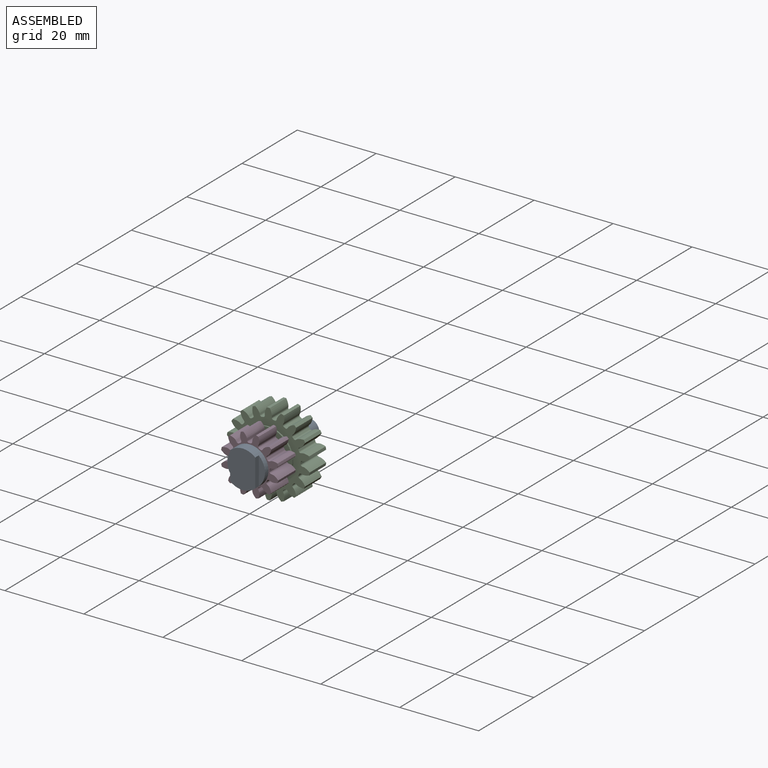
[diagram: assembled view]
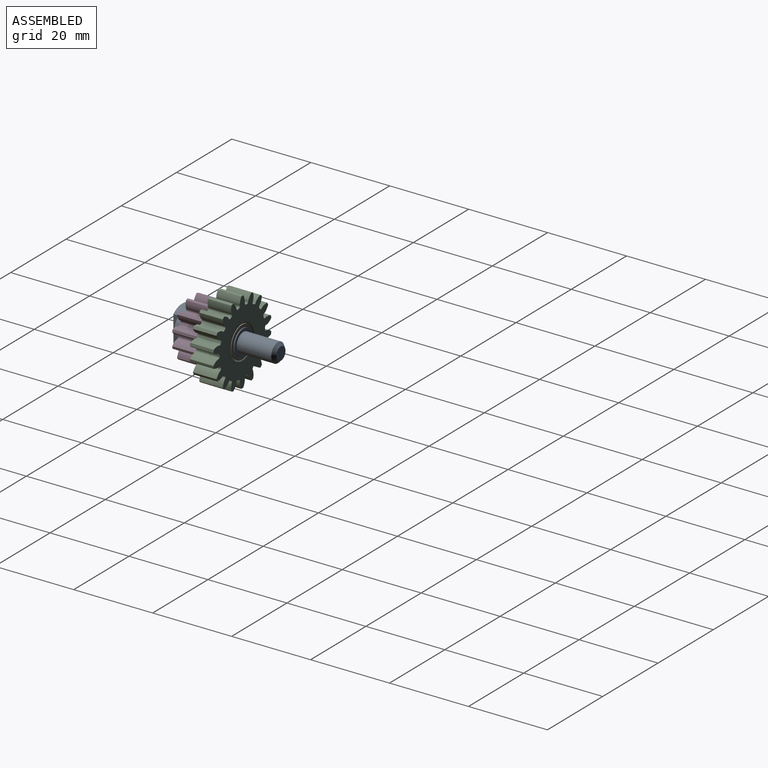
[diagram: assembled view, second angle]
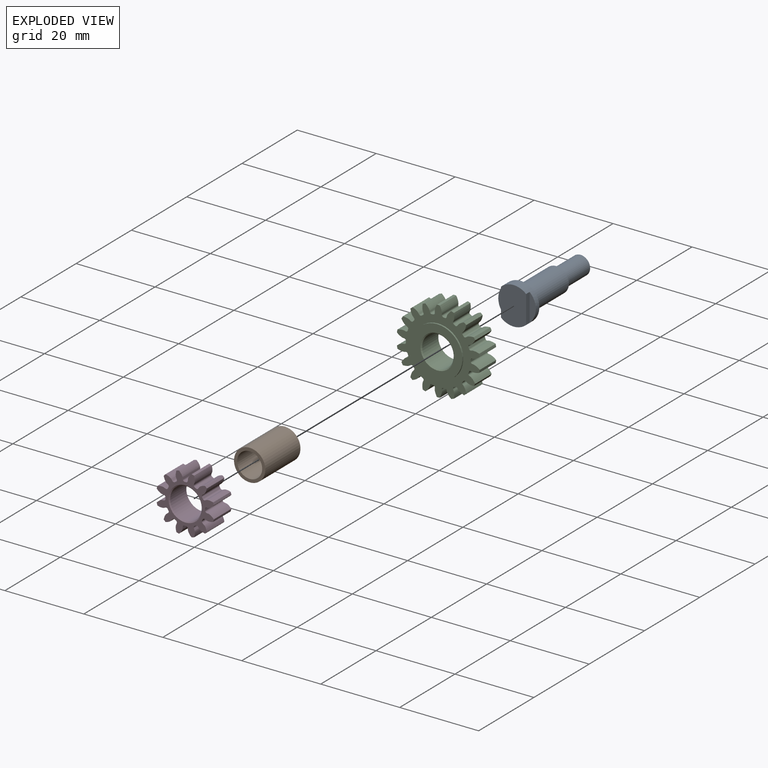
[diagram: exploded view]
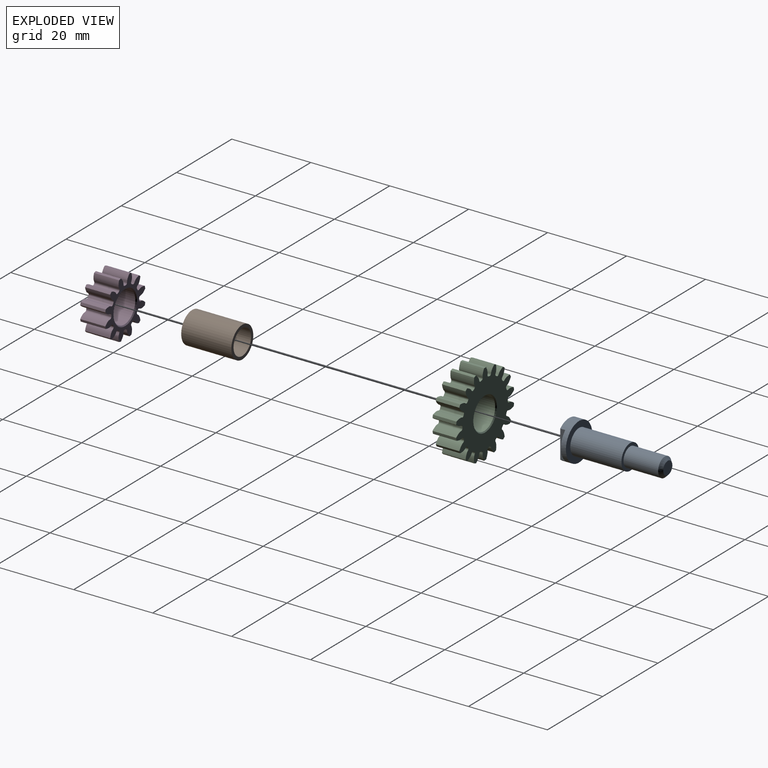
[diagram: exploded view, second angle]
ASSEMBLY  parts=4 mates=3
PART A: 12 faces, bbox 9.5x25x9.5 mm
  f0: plane 9.53x6.35mm, normal (0,-1,0), area 55.6mm2, adj f6,f7,f9
  f1: plane 3.3x3.3mm, normal (0,1,0), area 8.6mm2, adj f11
  f2: cylinder r=2.41mm len=8.76mm, axis (0,-1,0), area 132.9mm2, adj f3,f11
  f3: plane 6.35x6.35mm, normal (0,1,0), area 13.4mm2, adj f2,f4
  f4: cylinder r=3.17mm len=12.95mm, axis (0,-1,0), area 258.4mm2, adj f3,f5
  f5: plane 9.53x9.53mm, normal (0,1,0), area 39.6mm2, adj f4,f6
  f6: cylinder r=4.76mm len=9.53mm, axis (0,-1,0), area 55.7mm2, adj f0,f5,f7,f8,f9,f10
  f7: plane 7.1x1.27mm, normal (-1,0,0), area 9mm2, adj f0,f6,f8
  f8: plane 7.1x1.59mm, normal (0,-1,0), area 7.8mm2, adj f6,f7
  f9: plane 7.1x1.27mm, normal (1,0,0), area 9mm2, adj f0,f6,f10
  f10: plane 7.1x1.59mm, normal (0,-1,0), area 7.8mm2, adj f6,f9
  f11: cone r=2.41mm half-angle=45deg, axis (0,-1,0), area 13.8mm2, adj f1,f2
PART B: 4 faces, bbox 7.9x12.7x7.9 mm
  f0: cylinder r=3.17mm len=12.7mm, axis (0,1,0), area 253.4mm2, adj f2,f3
  f1: cylinder r=3.97mm len=12.7mm, axis (0,1,0), area 316.7mm2, adj f2,f3
  f2: plane 7.94x7.94mm, normal (0,-1,0), area 17.8mm2, adj f0,f1
  f3: plane 7.94x7.94mm, normal (0,1,0), area 17.8mm2, adj f0,f1
PART C: 115 faces, bbox 21x6.4x21.2 mm
  f0: cylinder r=10.58mm len=5.97mm, axis (0,1,0), area 4.3mm2, adj f99,f106,f110,f111
  f1: cylinder r=10.58mm len=5.97mm, axis (0,1,0), area 4.3mm2, adj f89,f101,f110,f111
  f2: cylinder r=10.58mm len=5.97mm, axis (0,1,0), area 4.3mm2, adj f19,f96,f110,f111
  f3: cylinder r=10.58mm len=5.97mm, axis (0,1,0), area 4.3mm2, adj f91,f94,f110,f111
  f4: cylinder r=10.58mm len=5.97mm, axis (0,1,0), area 4.3mm2, adj f74,f86,f110,f111
  f5: cylinder r=10.58mm len=5.97mm, axis (0,1,0), area 4.3mm2, adj f81,f84,f110,f111
  f6: cylinder r=10.58mm len=5.97mm, axis (0,1,0), area 4.3mm2, adj f69,f76,f110,f111
  f7: cylinder r=10.58mm len=5.97mm, axis (0,1,0), area 4.3mm2, adj f71,f104,f110,f111
  f8: cylinder r=10.58mm len=5.97mm, axis (0,1,0), area 4.3mm2, adj f54,f66,f110,f111
  f9: cylinder r=10.58mm len=5.97mm, axis (0,1,0), area 4.3mm2, adj f61,f64,f110,f111
  f10: cylinder r=10.58mm len=5.97mm, axis (0,1,0), area 4.3mm2, adj f49,f56,f110,f111
  f11: cylinder r=10.58mm len=5.97mm, axis (0,1,0), area 4.3mm2, adj f51,f79,f110,f111
  f12: cylinder r=10.58mm len=5.97mm, axis (0,1,0), area 4.3mm2, adj f46,f59,f110,f111
  f13: cylinder r=10.58mm len=5.97mm, axis (0,1,0), area 4.3mm2, adj f41,f44,f110,f111
  f14: cylinder r=10.58mm len=5.97mm, axis (0,1,0), area 4.3mm2, adj f29,f36,f110,f111
  f15: cylinder r=10.58mm len=5.97mm, axis (0,1,0), area 4.3mm2, adj f31,f39,f110,f111
  f16: cylinder r=10.58mm len=5.97mm, axis (0,1,0), area 4.3mm2, adj f26,f34,f110,f111
  f17: plane 12.7x12.7mm, normal (0,-1,0), area 69.8mm2, adj f112,f113
  f18: cylinder r=10.58mm len=5.97mm, axis (0,1,0), area 4.3mm2, adj f21,f24,f110,f111
  f19: extruded ~5.97x1.88mm, area 12.7mm2, adj f2,f22,f110,f111
  f20: cylinder r=8.2mm len=5.97mm, axis (0,1,0), area 2.2mm2, adj f22,f23,f110,f111
  f21: extruded ~5.97x1.88mm, area 12.7mm2, adj f18,f23,f110,f111
  f22: cylinder r=0.43mm len=5.97mm, axis (0,1,0), area 3.9mm2, adj f19,f20,f110,f111
  f23: cylinder r=0.43mm len=5.97mm, axis (0,1,0), area 3.9mm2, adj f20,f21,f110,f111
  f24: extruded ~5.97x2.06mm, area 12.7mm2, adj f18,f27,f110,f111
  f25: cylinder r=8.2mm len=5.97mm, axis (0,1,0), area 2.2mm2, adj f27,f28,f110,f111
  f26: extruded ~5.97x1.48mm, area 12.7mm2, adj f16,f28,f110,f111
  f27: cylinder r=0.43mm len=5.97mm, axis (0,1,0), area 3.9mm2, adj f24,f25,f110,f111
  f28: cylinder r=0.43mm len=5.97mm, axis (0,1,0), area 3.9mm2, adj f25,f26,f110,f111
  f29: extruded ~5.97x1.69mm, area 12.7mm2, adj f14,f32,f110,f111
  f30: cylinder r=8.2mm len=5.97mm, axis (0,1,0), area 2.2mm2, adj f32,f33,f110,f111
  f31: extruded ~5.97x2.06mm, area 12.7mm2, adj f15,f33,f110,f111
  f32: cylinder r=0.43mm len=5.97mm, axis (0,1,0), area 3.9mm2, adj f29,f30,f110,f111
  f33: cylinder r=0.43mm len=5.97mm, axis (0,1,0), area 3.9mm2, adj f30,f31,f110,f111
  f34: extruded ~5.97x2mm, area 12.7mm2, adj f16,f37,f110,f111
  f35: cylinder r=8.2mm len=5.97mm, axis (0,1,0), area 2.2mm2, adj f37,f38,f110,f111
  f36: extruded ~5.97x1.87mm, area 12.7mm2, adj f14,f38,f110,f111
  f37: cylinder r=0.43mm len=5.97mm, axis (0,1,0), area 3.9mm2, adj f34,f35,f110,f111
  f38: cylinder r=0.43mm len=5.97mm, axis (0,1,0), area 3.9mm2, adj f35,f36,f110,f111
  f39: extruded ~5.97x1.71mm, area 12.7mm2, adj f15,f42,f110,f111
  f40: cylinder r=8.2mm len=5.97mm, axis (0,1,0), area 2.2mm2, adj f42,f43,f110,f111
  f41: extruded ~5.97x2mm, area 12.7mm2, adj f13,f43,f110,f111
  f42: cylinder r=0.43mm len=5.97mm, axis (0,1,0), area 3.9mm2, adj f39,f40,f110,f111
  f43: cylinder r=0.43mm len=5.97mm, axis (0,1,0), area 3.9mm2, adj f40,f41,f110,f111
  f44: extruded ~5.97x2mm, area 12.7mm2, adj f13,f47,f110,f111
  f45: cylinder r=8.2mm len=5.97mm, axis (0,1,0), area 2.2mm2, adj f47,f48,f110,f111
  f46: extruded ~5.97x1.71mm, area 12.7mm2, adj f12,f48,f110,f111
  f47: cylinder r=0.43mm len=5.97mm, axis (0,1,0), area 3.9mm2, adj f44,f45,f110,f111
  f48: cylinder r=0.43mm len=5.97mm, axis (0,1,0), area 3.9mm2, adj f45,f46,f110,f111
  f49: extruded ~5.97x1.88mm, area 12.7mm2, adj f10,f52,f110,f111
  f50: cylinder r=8.2mm len=5.97mm, axis (0,1,0), area 2.2mm2, adj f52,f53,f110,f111
  f51: extruded ~5.97x1.88mm, area 12.7mm2, adj f11,f53,f110,f111
  f52: cylinder r=0.43mm len=5.97mm, axis (0,1,0), area 3.9mm2, adj f49,f50,f110,f111
  f53: cylinder r=0.43mm len=5.97mm, axis (0,1,0), area 3.9mm2, adj f50,f51,f110,f111
  f54: extruded ~5.97x1.48mm, area 12.7mm2, adj f8,f57,f110,f111
  f55: cylinder r=8.2mm len=5.97mm, axis (0,1,0), area 2.2mm2, adj f57,f58,f110,f111
  f56: extruded ~5.97x2.06mm, area 12.7mm2, adj f10,f58,f110,f111
  f57: cylinder r=0.43mm len=5.97mm, axis (0,1,0), area 3.9mm2, adj f54,f55,f110,f111
  f58: cylinder r=0.43mm len=5.97mm, axis (0,1,0), area 3.9mm2, adj f55,f56,f110,f111
  f59: extruded ~5.97x2.06mm, area 12.7mm2, adj f12,f62,f110,f111
  f60: cylinder r=8.2mm len=5.97mm, axis (0,1,0), area 2.2mm2, adj f62,f63,f110,f111
  f61: extruded ~5.97x1.69mm, area 12.7mm2, adj f9,f63,f110,f111
  f62: cylinder r=0.43mm len=5.97mm, axis (0,1,0), area 3.9mm2, adj f59,f60,f110,f111
  f63: cylinder r=0.43mm len=5.97mm, axis (0,1,0), area 3.9mm2, adj f60,f61,f110,f111
  f64: extruded ~5.97x1.87mm, area 12.7mm2, adj f9,f67,f110,f111
  f65: cylinder r=8.2mm len=5.97mm, axis (0,1,0), area 2.2mm2, adj f67,f68,f110,f111
  f66: extruded ~5.97x2mm, area 12.7mm2, adj f8,f68,f110,f111
  f67: cylinder r=0.43mm len=5.97mm, axis (0,1,0), area 3.9mm2, adj f64,f65,f110,f111
  f68: cylinder r=0.43mm len=5.97mm, axis (0,1,0), area 3.9mm2, adj f65,f66,f110,f111
  f69: extruded ~5.97x1.71mm, area 12.7mm2, adj f6,f72,f110,f111
  f70: cylinder r=8.2mm len=5.97mm, axis (0,1,0), area 2.2mm2, adj f72,f73,f110,f111
  f71: extruded ~5.97x2mm, area 12.7mm2, adj f7,f73,f110,f111
  f72: cylinder r=0.43mm len=5.97mm, axis (0,1,0), area 3.9mm2, adj f69,f70,f110,f111
  f73: cylinder r=0.43mm len=5.97mm, axis (0,1,0), area 3.9mm2, adj f70,f71,f110,f111
  f74: extruded ~5.97x1.69mm, area 12.7mm2, adj f4,f77,f110,f111
  f75: cylinder r=8.2mm len=5.97mm, axis (0,1,0), area 2.2mm2, adj f77,f78,f110,f111
  f76: extruded ~5.97x2.06mm, area 12.7mm2, adj f6,f78,f110,f111
  f77: cylinder r=0.43mm len=5.97mm, axis (0,1,0), area 3.9mm2, adj f74,f75,f110,f111
  f78: cylinder r=0.43mm len=5.97mm, axis (0,1,0), area 3.9mm2, adj f75,f76,f110,f111
  f79: extruded ~5.97x2.06mm, area 12.7mm2, adj f11,f82,f110,f111
  f80: cylinder r=8.2mm len=5.97mm, axis (0,1,0), area 2.2mm2, adj f82,f83,f110,f111
  f81: extruded ~5.97x1.48mm, area 12.7mm2, adj f5,f83,f110,f111
  f82: cylinder r=0.43mm len=5.97mm, axis (0,1,0), area 3.9mm2, adj f79,f80,f110,f111
  f83: cylinder r=0.43mm len=5.97mm, axis (0,1,0), area 3.9mm2, adj f80,f81,f110,f111
  f84: extruded ~5.97x2mm, area 12.7mm2, adj f5,f87,f110,f111
  f85: cylinder r=8.2mm len=5.97mm, axis (0,1,0), area 2.2mm2, adj f87,f88,f110,f111
  f86: extruded ~5.97x1.87mm, area 12.7mm2, adj f4,f88,f110,f111
  f87: cylinder r=0.43mm len=5.97mm, axis (0,1,0), area 3.9mm2, adj f84,f85,f110,f111
  f88: cylinder r=0.43mm len=5.97mm, axis (0,1,0), area 3.9mm2, adj f85,f86,f110,f111
  f89: extruded ~5.97x1.87mm, area 12.7mm2, adj f1,f92,f110,f111
  f90: cylinder r=8.2mm len=5.97mm, axis (0,1,0), area 2.2mm2, adj f92,f93,f110,f111
  f91: extruded ~5.97x2mm, area 12.7mm2, adj f3,f93,f110,f111
  f92: cylinder r=0.43mm len=5.97mm, axis (0,1,0), area 3.9mm2, adj f89,f90,f110,f111
  f93: cylinder r=0.43mm len=5.97mm, axis (0,1,0), area 3.9mm2, adj f90,f91,f110,f111
  f94: extruded ~5.97x1.48mm, area 12.7mm2, adj f3,f97,f110,f111
  f95: cylinder r=8.2mm len=5.97mm, axis (0,1,0), area 2.2mm2, adj f97,f98,f110,f111
  f96: extruded ~5.97x2.06mm, area 12.7mm2, adj f2,f98,f110,f111
  f97: cylinder r=0.43mm len=5.97mm, axis (0,1,0), area 3.9mm2, adj f94,f95,f110,f111
  f98: cylinder r=0.43mm len=5.97mm, axis (0,1,0), area 3.9mm2, adj f95,f96,f110,f111
  f99: extruded ~5.97x2.06mm, area 12.7mm2, adj f0,f102,f110,f111
  f100: cylinder r=8.2mm len=5.97mm, axis (0,1,0), area 2.2mm2, adj f102,f103,f110,f111
  f101: extruded ~5.97x1.69mm, area 12.7mm2, adj f1,f103,f110,f111
  f102: cylinder r=0.43mm len=5.97mm, axis (0,1,0), area 3.9mm2, adj f99,f100,f110,f111
  f103: cylinder r=0.43mm len=5.97mm, axis (0,1,0), area 3.9mm2, adj f100,f101,f110,f111
  f104: extruded ~5.97x2mm, area 12.7mm2, adj f7,f107,f110,f111
  f105: cylinder r=8.2mm len=5.97mm, axis (0,1,0), area 2.2mm2, adj f107,f108,f110,f111
  f106: extruded ~5.97x1.71mm, area 12.7mm2, adj f0,f108,f110,f111
  f107: cylinder r=0.43mm len=5.97mm, axis (0,1,0), area 3.9mm2, adj f104,f105,f110,f111
  f108: cylinder r=0.43mm len=5.97mm, axis (0,1,0), area 3.9mm2, adj f105,f106,f110,f111
  f109: cylinder r=4mm len=8mm, axis (0,1,0), area 146.8mm2, adj f113,f114
  f110: plane 21.17x20.98mm, normal (0,1,0), area 221.6mm2, adj f0,f1,f2,f3,f4,f5,f6,f7
  f111: plane 21.17x20.98mm, normal (0,-1,0), area 151.7mm2, adj f0,f1,f2,f3,f4,f5,f6,f7
  f112: cylinder r=6.35mm len=12.7mm, axis (0,-1,0), area 15.2mm2, adj f17,f111
  f113: cone r=4mm half-angle=45deg, axis (0,-1,0), area 9.3mm2, adj f17,f109
  f114: cone r=4.25mm half-angle=45deg, axis (0,1,0), area 9.3mm2, adj f109,f110
PART D: 77 faces, bbox 14.5x6.4x14.5 mm
  f0: cylinder r=7.41mm len=6.35mm, axis (0,1,0), area 4.2mm2, adj f11,f14,f60,f72
  f1: cylinder r=7.41mm len=6.35mm, axis (0,1,0), area 4.2mm2, adj f11,f14,f67,f70
  f2: cylinder r=7.41mm len=6.35mm, axis (0,1,0), area 4.2mm2, adj f11,f14,f55,f62
  f3: cylinder r=7.41mm len=6.35mm, axis (0,1,0), area 4.2mm2, adj f11,f14,f50,f57
  f4: cylinder r=7.41mm len=6.35mm, axis (0,1,0), area 4.2mm2, adj f11,f14,f45,f52
  f5: cylinder r=7.41mm len=6.35mm, axis (0,1,0), area 4.2mm2, adj f11,f14,f35,f47
  f6: cylinder r=7.41mm len=6.35mm, axis (0,1,0), area 4.2mm2, adj f11,f14,f15,f42
  f7: cylinder r=7.41mm len=6.35mm, axis (0,1,0), area 4.2mm2, adj f11,f14,f37,f40
  f8: cylinder r=7.41mm len=6.35mm, axis (0,1,0), area 4.2mm2, adj f11,f14,f25,f32
  f9: cylinder r=7.41mm len=6.35mm, axis (0,1,0), area 4.2mm2, adj f11,f14,f20,f27
  f10: cylinder r=7.41mm len=6.35mm, axis (0,1,0), area 4.2mm2, adj f11,f14,f22,f65
  f11: plane 14.5x14.5mm, normal (0,-1,0), area 65.2mm2, adj f0,f1,f2,f3,f4,f5,f6,f7
  f12: cylinder r=4mm len=8mm, axis (0,1,0), area 146.8mm2, adj f75,f76
  f13: cylinder r=7.41mm len=6.35mm, axis (0,1,0), area 4.2mm2, adj f11,f14,f17,f30
  f14: plane 14.5x14.5mm, normal (0,1,0), area 65.2mm2, adj f0,f1,f2,f3,f4,f5,f6,f7
  f15: extruded ~6.35x1.82mm, area 13.5mm2, adj f6,f11,f14,f18
  f16: cylinder r=5.03mm len=6.35mm, axis (0,1,0), area 2.3mm2, adj f11,f14,f18,f19
  f17: extruded ~6.35x1.82mm, area 13.5mm2, adj f11,f13,f14,f19
  f18: cylinder r=0.44mm len=6.35mm, axis (0,1,0), area 4.1mm2, adj f11,f14,f15,f16
  f19: cylinder r=0.44mm len=6.35mm, axis (0,1,0), area 4.1mm2, adj f11,f14,f16,f17
  f20: extruded ~6.35x1.82mm, area 13.5mm2, adj f9,f11,f14,f23
  f21: cylinder r=5.03mm len=6.35mm, axis (0,1,0), area 2.3mm2, adj f11,f14,f23,f24
  f22: extruded ~6.35x1.82mm, area 13.5mm2, adj f10,f11,f14,f24
  f23: cylinder r=0.44mm len=6.35mm, axis (0,1,0), area 4.1mm2, adj f11,f14,f20,f21
  f24: cylinder r=0.44mm len=6.35mm, axis (0,1,0), area 4.1mm2, adj f11,f14,f21,f22
  f25: extruded ~6.35x1.75mm, area 13.5mm2, adj f8,f11,f14,f28
  f26: cylinder r=5.03mm len=6.35mm, axis (0,1,0), area 2.3mm2, adj f11,f14,f28,f29
  f27: extruded ~6.35x2.06mm, area 13.5mm2, adj f9,f11,f14,f29
  f28: cylinder r=0.44mm len=6.35mm, axis (0,1,0), area 4.1mm2, adj f11,f14,f25,f26
  f29: cylinder r=0.44mm len=6.35mm, axis (0,1,0), area 4.1mm2, adj f11,f14,f26,f27
  f30: extruded ~6.35x2.06mm, area 13.5mm2, adj f11,f13,f14,f33
  f31: cylinder r=5.03mm len=6.35mm, axis (0,1,0), area 2.3mm2, adj f11,f14,f33,f34
  f32: extruded ~6.35x1.75mm, area 13.5mm2, adj f8,f11,f14,f34
  f33: cylinder r=0.44mm len=6.35mm, axis (0,1,0), area 4.1mm2, adj f11,f14,f30,f31
  f34: cylinder r=0.44mm len=6.35mm, axis (0,1,0), area 4.1mm2, adj f11,f14,f31,f32
  f35: extruded ~6.35x2.06mm, area 13.5mm2, adj f5,f11,f14,f38
  f36: cylinder r=5.03mm len=6.35mm, axis (0,1,0), area 2.3mm2, adj f11,f14,f38,f39
  f37: extruded ~6.35x1.75mm, area 13.5mm2, adj f7,f11,f14,f39
  f38: cylinder r=0.44mm len=6.35mm, axis (0,1,0), area 4.1mm2, adj f11,f14,f35,f36
  f39: cylinder r=0.44mm len=6.35mm, axis (0,1,0), area 4.1mm2, adj f11,f14,f36,f37
  f40: extruded ~6.35x1.75mm, area 13.5mm2, adj f7,f11,f14,f43
  f41: cylinder r=5.03mm len=6.35mm, axis (0,1,0), area 2.3mm2, adj f11,f14,f43,f44
  f42: extruded ~6.35x2.06mm, area 13.5mm2, adj f6,f11,f14,f44
  f43: cylinder r=0.44mm len=6.35mm, axis (0,1,0), area 4.1mm2, adj f11,f14,f40,f41
  f44: cylinder r=0.44mm len=6.35mm, axis (0,1,0), area 4.1mm2, adj f11,f14,f41,f42
  f45: extruded ~6.35x1.82mm, area 13.5mm2, adj f4,f11,f14,f48
  f46: cylinder r=5.03mm len=6.35mm, axis (0,1,0), area 2.3mm2, adj f11,f14,f48,f49
  f47: extruded ~6.35x1.82mm, area 13.5mm2, adj f5,f11,f14,f49
  f48: cylinder r=0.44mm len=6.35mm, axis (0,1,0), area 4.1mm2, adj f11,f14,f45,f46
  f49: cylinder r=0.44mm len=6.35mm, axis (0,1,0), area 4.1mm2, adj f11,f14,f46,f47
  f50: extruded ~6.35x1.75mm, area 13.5mm2, adj f3,f11,f14,f53
  f51: cylinder r=5.03mm len=6.35mm, axis (0,1,0), area 2.3mm2, adj f11,f14,f53,f54
  f52: extruded ~6.35x2.06mm, area 13.5mm2, adj f4,f11,f14,f54
  f53: cylinder r=0.44mm len=6.35mm, axis (0,1,0), area 4.1mm2, adj f11,f14,f50,f51
  f54: cylinder r=0.44mm len=6.35mm, axis (0,1,0), area 4.1mm2, adj f11,f14,f51,f52
  f55: extruded ~6.35x2.06mm, area 13.5mm2, adj f2,f11,f14,f58
  f56: cylinder r=5.03mm len=6.35mm, axis (0,1,0), area 2.3mm2, adj f11,f14,f58,f59
  f57: extruded ~6.35x1.75mm, area 13.5mm2, adj f3,f11,f14,f59
  f58: cylinder r=0.44mm len=6.35mm, axis (0,1,0), area 4.1mm2, adj f11,f14,f55,f56
  f59: cylinder r=0.44mm len=6.35mm, axis (0,1,0), area 4.1mm2, adj f11,f14,f56,f57
  f60: extruded ~6.35x1.82mm, area 13.5mm2, adj f0,f11,f14,f63
  f61: cylinder r=5.03mm len=6.35mm, axis (0,1,0), area 2.3mm2, adj f11,f14,f63,f64
  f62: extruded ~6.35x1.82mm, area 13.5mm2, adj f2,f11,f14,f64
  f63: cylinder r=0.44mm len=6.35mm, axis (0,1,0), area 4.1mm2, adj f11,f14,f60,f61
  f64: cylinder r=0.44mm len=6.35mm, axis (0,1,0), area 4.1mm2, adj f11,f14,f61,f62
  f65: extruded ~6.35x2.06mm, area 13.5mm2, adj f10,f11,f14,f68
  f66: cylinder r=5.03mm len=6.35mm, axis (0,1,0), area 2.3mm2, adj f11,f14,f68,f69
  f67: extruded ~6.35x1.75mm, area 13.5mm2, adj f1,f11,f14,f69
  f68: cylinder r=0.44mm len=6.35mm, axis (0,1,0), area 4.1mm2, adj f11,f14,f65,f66
  f69: cylinder r=0.44mm len=6.35mm, axis (0,1,0), area 4.1mm2, adj f11,f14,f66,f67
  f70: extruded ~6.35x1.75mm, area 13.5mm2, adj f1,f11,f14,f73
  f71: cylinder r=5.03mm len=6.35mm, axis (0,1,0), area 2.3mm2, adj f11,f14,f73,f74
  f72: extruded ~6.35x2.06mm, area 13.5mm2, adj f0,f11,f14,f74
  f73: cylinder r=0.44mm len=6.35mm, axis (0,1,0), area 4.1mm2, adj f11,f14,f70,f71
  f74: cylinder r=0.44mm len=6.35mm, axis (0,1,0), area 4.1mm2, adj f11,f14,f71,f72
  f75: cone r=4mm half-angle=45deg, axis (0,-1,0), area 9.3mm2, adj f11,f12
  f76: cone r=4.25mm half-angle=45deg, axis (0,1,0), area 9.3mm2, adj f12,f14
PLACE A at identity fixed
PLACE B t=(0,12.7,0)mm
PLACE C rot(axis=(-0.23,0.97,-0.08),0deg) t=(0,12.7,0)mm
PLACE D rot(axis=(1,0,0),0deg) t=(0,6.35,0)mm
MATE fastened A.f2 <-> B.f1  axis (0,1,0) through (0,0,0)mm
MATE revolute D.f0 <-> B.f1  axis (0,-1,0) through (0,0,0)mm
MATE fastened C.f0 <-> D.f0  axis (0,-1,0) through (0,6.35,0)mm
